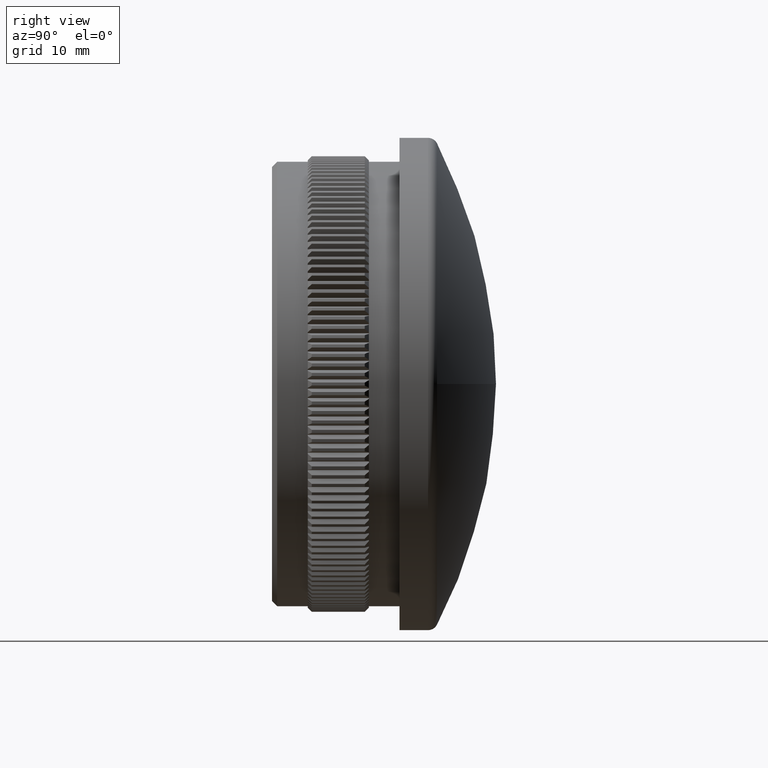
[diagram: clean part render]
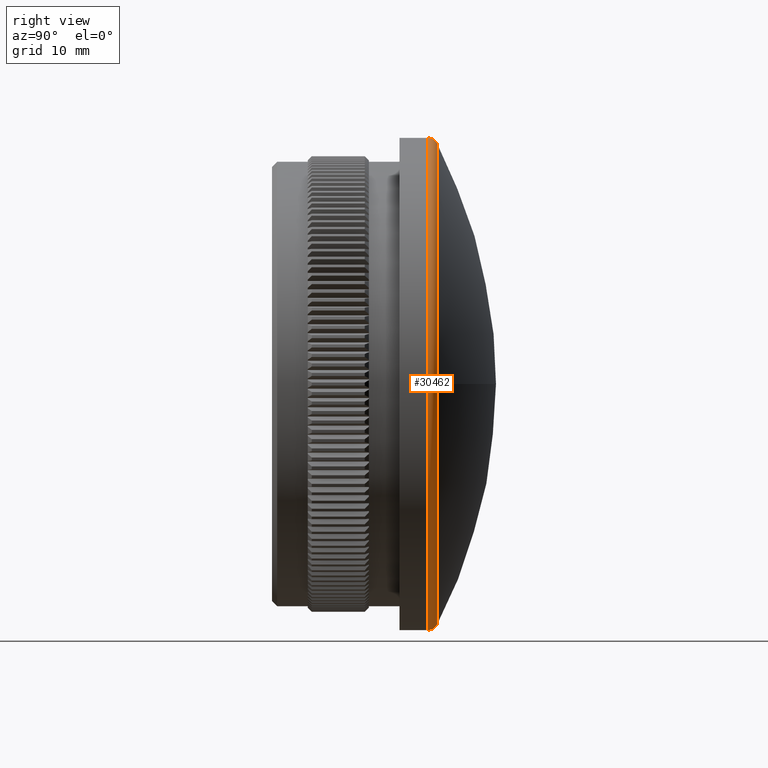
[diagram: same view with one face highlighted and labeled with its STEP entity id]
A machine part, right view. The second image highlights one B-rep face of the part: STEP entity #30462.
In plain terms, the highlighted toroidal blend (fillet) surface has major radius 23.15 mm and minor (blend) radius 1 mm.
Its self-contained STEP definition (entity closure, byte-faithful):
#1442 = DIRECTION ( 'NONE',  ( 0.0000000000000000000, 0.0000000000000000000, -1.000000000000000000 ) ) ;
#1468 = DIRECTION ( 'NONE',  ( -1.224646799147353500E-016, 0.0000000000000000000, -1.000000000000000000 ) ) ;
#1707 = DIRECTION ( 'NONE',  ( 0.0000000000000000000, 0.0000000000000000000, -1.000000000000000000 ) ) ;
#2193 = ORIENTED_EDGE ( 'NONE', *, *, #14432, .F. ) ;
#3024 = CARTESIAN_POINT ( 'NONE',  ( 0.0000000000000000000, 15.29769043376147400, 0.0000000000000000000 ) ) ;
#4645 = CARTESIAN_POINT ( 'NONE',  ( 0.0000000000000000000, 16.18441730586144800, 0.0000000000000000000 ) ) ;
#4867 = CIRCLE ( 'NONE', #9998, 23.61229368835818200 ) ;
#5090 = DIRECTION ( 'NONE',  ( 0.0000000000000000000, 1.000000000000000000, 0.0000000000000000000 ) ) ;
#5554 = ORIENTED_EDGE ( 'NONE', *, *, #21059, .T. ) ;
#6433 = TOROIDAL_SURFACE ( 'NONE', #15754, 23.14999999999999900, 1.000000000000000000 ) ;
#6489 = AXIS2_PLACEMENT_3D ( 'NONE', #22193, #18735, #1468 ) ;
#6533 = DIRECTION ( 'NONE',  ( -0.0000000000000000000, -1.000000000000000000, -0.0000000000000000000 ) ) ;
#7399 = DIRECTION ( 'NONE',  ( 0.0000000000000000000, 0.0000000000000000000, 1.000000000000000000 ) ) ;
#7656 = CARTESIAN_POINT ( 'NONE',  ( 0.0000000000000000000, 16.18441730586144800, 0.0000000000000000000 ) ) ;
#7954 = DIRECTION ( 'NONE',  ( 0.0000000000000000000, 1.000000000000000000, 0.0000000000000000000 ) ) ;
#9302 = CARTESIAN_POINT ( 'NONE',  ( 0.0000000000000000000, 16.18441730586144800, -23.61229368835818200 ) ) ;
#9998 = AXIS2_PLACEMENT_3D ( 'NONE', #7656, #7954, #28125 ) ;
#10622 = AXIS2_PLACEMENT_3D ( 'NONE', #14917, #42454, #7399 ) ;
#14432 = EDGE_CURVE ( 'NONE', #41432, #22970, #4867, .T. ) ;
#14917 = CARTESIAN_POINT ( 'NONE',  ( 0.0000000000000000000, 15.29769043376147400, -23.14999999999999900 ) ) ;
#15617 = FACE_OUTER_BOUND ( 'NONE', #24196, .T. ) ;
#15754 = AXIS2_PLACEMENT_3D ( 'NONE', #22156, #42790, #1442 ) ;
#17295 = CARTESIAN_POINT ( 'NONE',  ( 0.0000000000000000000, 15.29769043376147400, -24.14999999999999900 ) ) ;
#17322 = ORIENTED_EDGE ( 'NONE', *, *, #36740, .F. ) ;
#18266 = CIRCLE ( 'NONE', #10622, 1.000000000000000900 ) ;
#18541 = CIRCLE ( 'NONE', #29437, 23.61229368835818200 ) ;
#18735 = DIRECTION ( 'NONE',  ( 1.000000000000000000, 0.0000000000000000000, -1.224646799147353200E-016 ) ) ;
#19955 = EDGE_CURVE ( 'NONE', #27340, #25413, #31515, .T. ) ;
#21059 = EDGE_CURVE ( 'NONE', #41432, #25413, #38476, .T. ) ;
#22156 = CARTESIAN_POINT ( 'NONE',  ( 0.0000000000000000000, 15.29769043376147400, 0.0000000000000000000 ) ) ;
#22193 = CARTESIAN_POINT ( 'NONE',  ( 2.835057340026122400E-015, 15.29769043376147400, 23.14999999999999900 ) ) ;
#22500 = CARTESIAN_POINT ( 'NONE',  ( 2.924597004269183500E-015, 16.18441730586144800, 23.61229368835818200 ) ) ;
#22970 = VERTEX_POINT ( 'NONE', #41201 ) ;
#24196 = EDGE_LOOP ( 'NONE', ( #2193, #5554, #37870, #42800, #17322 ) ) ;
#25413 = VERTEX_POINT ( 'NONE', #42804 ) ;
#27340 = VERTEX_POINT ( 'NONE', #17295 ) ;
#28125 = DIRECTION ( 'NONE',  ( 0.0000000000000000000, 0.0000000000000000000, -1.000000000000000000 ) ) ;
#28634 = VERTEX_POINT ( 'NONE', #9302 ) ;
#29437 = AXIS2_PLACEMENT_3D ( 'NONE', #4645, #5090, #1707 ) ;
#30123 = AXIS2_PLACEMENT_3D ( 'NONE', #3024, #6533, #43751 ) ;
#30462 = ADVANCED_FACE ( 'NONE', ( #15617 ), #6433, .T. ) ;
#30956 = EDGE_CURVE ( 'NONE', #28634, #27340, #18266, .T. ) ;
#31515 = CIRCLE ( 'NONE', #30123, 24.14999999999999900 ) ;
#36740 = EDGE_CURVE ( 'NONE', #22970, #28634, #18541, .T. ) ;
#37870 = ORIENTED_EDGE ( 'NONE', *, *, #19955, .F. ) ;
#38476 = CIRCLE ( 'NONE', #6489, 1.000000000000000900 ) ;
#41201 = CARTESIAN_POINT ( 'NONE',  ( 23.61229368835817500, 16.18441730586144800, 0.0000000000000000000 ) ) ;
#41432 = VERTEX_POINT ( 'NONE', #22500 ) ;
#42454 = DIRECTION ( 'NONE',  ( -1.000000000000000000, 0.0000000000000000000, 0.0000000000000000000 ) ) ;
#42790 = DIRECTION ( 'NONE',  ( -0.0000000000000000000, -1.000000000000000000, -0.0000000000000000000 ) ) ;
#42800 = ORIENTED_EDGE ( 'NONE', *, *, #30956, .F. ) ;
#42804 = CARTESIAN_POINT ( 'NONE',  ( 2.957522019940857900E-015, 15.29769043376147400, 24.14999999999999900 ) ) ;
#43751 = DIRECTION ( 'NONE',  ( 0.0000000000000000000, 0.0000000000000000000, -1.000000000000000000 ) ) ;